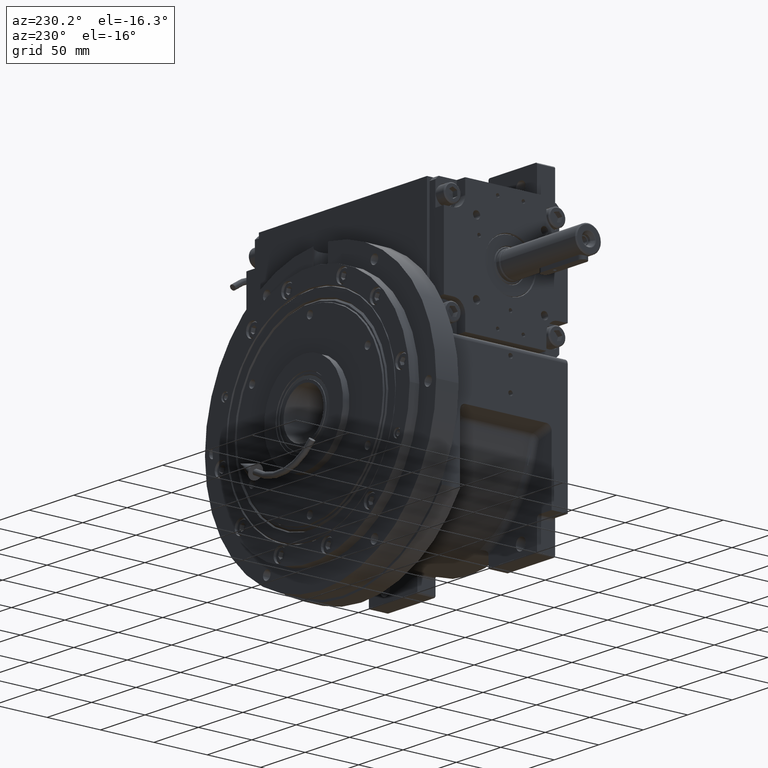
[diagram: clean part render]
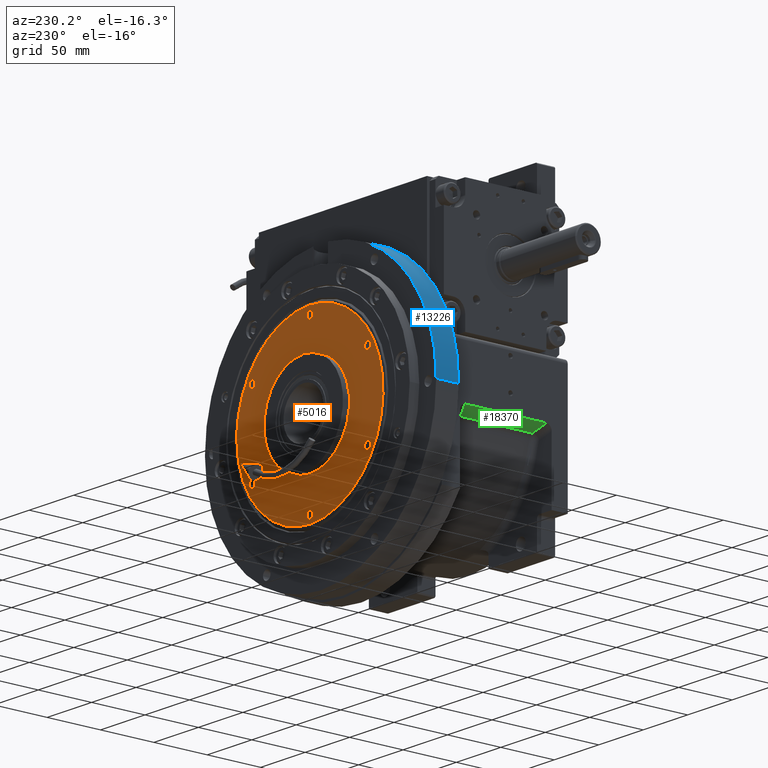
[diagram: same view with three faces highlighted in distinct colors, each labeled with its STEP entity id]
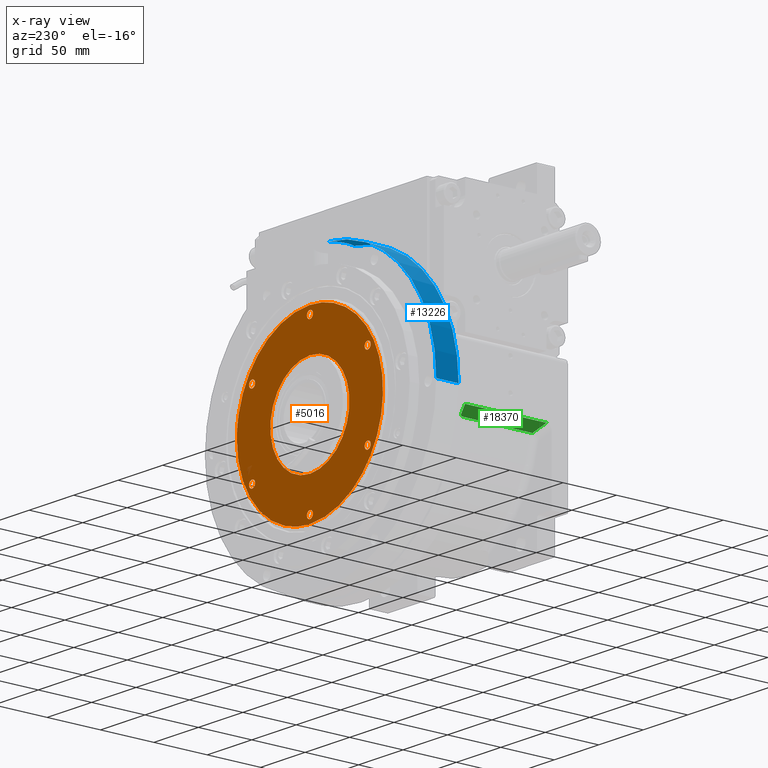
[diagram: x-ray of the same camera — body ghosted, the three highlighted faces saturated]
A machine part, auxiliary view with three faces highlighted in distinct colors.
The next image is the same camera in x-ray (body ghosted, the three faces saturated) — at least one of them is partly hidden behind the body in this view.
Their STEP definitions:

[orange] entity #5016 — the highlighted planar face has unit normal (0, -1, -0).
#200 = ORIENTED_EDGE ( 'NONE', *, *, #17359, .F. ) ;
#719 = AXIS2_PLACEMENT_3D ( 'NONE', #52816, #26103, #43325 ) ;
#1864 = DIRECTION ( 'NONE',  ( -3.197042680585404103E-16, -1.000000000000000000, -2.395852276087259418E-17 ) ) ;
#1905 = CARTESIAN_POINT ( 'NONE',  ( 78.32115647600109298, 110.4999999999999716, -25.16263082416817198 ) ) ;
#1909 = EDGE_CURVE ( 'NONE', #51746, #45084, #8435, .T. ) ;
#2084 = CARTESIAN_POINT ( 'NONE',  ( -73.86467355760834153, 110.5000000000000142, 36.43724814399683254 ) ) ;
#2256 = CIRCLE ( 'NONE', #32590, 3.400000000000000355 ) ;
#2263 = CARTESIAN_POINT ( 'NONE',  ( 80.11857142980544211, 110.5000000000000142, -18.33865731567764001 ) ) ;
#2329 = CARTESIAN_POINT ( 'NONE',  ( -71.59999999999998010, 110.5000000000000000, 3.061616997868142046E-15 ) ) ;
#2435 = CARTESIAN_POINT ( 'NONE',  ( -71.33312151958747904, 110.5000000000000142, 41.17344376063476830 ) ) ;
#2448 = VERTEX_POINT ( 'NONE', #44351 ) ;
#2676 = DIRECTION ( 'NONE',  ( -1.000000000000000000, 4.081702296416015997E-15, 0.000000000000000000 ) ) ;
#2820 = CARTESIAN_POINT ( 'NONE',  ( -50.14754556814370545, 110.5000000000000000, -65.33666926840521683 ) ) ;
#2949 = CARTESIAN_POINT ( 'NONE',  ( 41.17286106389226319, 110.4999999999999858, -71.33364164011456410 ) ) ;
#3069 = CARTESIAN_POINT ( 'NONE',  ( -34.10000000000000142, 110.5000000000000000, -64.95190528383290030 ) ) ;
#3288 = CARTESIAN_POINT ( 'NONE',  ( 61.93063791654595462, 110.5000000000000000, -54.29769947772633287 ) ) ;
#3466 = CARTESIAN_POINT ( 'NONE',  ( 10.74154536275718641, 110.5000000000000000, 81.65949047945815664 ) ) ;
#3506 = CARTESIAN_POINT ( 'NONE',  ( -5.396965920549728679, 110.4999999999999858, -82.18606886526323763 ) ) ;
#3513 = DIRECTION ( 'NONE',  ( -1.000000000000000000, 1.836909530733546166E-16, 0.000000000000000000 ) ) ;
#3603 = AXIS2_PLACEMENT_3D ( 'NONE', #13288, #50865, #55460 ) ;
#3642 = AXIS2_PLACEMENT_3D ( 'NONE', #5266, #26713, #28821 ) ;
#3653 = CARTESIAN_POINT ( 'NONE',  ( -82.18603400874098952, 110.5000015448012078, -1.581323299043360018E-07 ) ) ;
#3825 = CARTESIAN_POINT ( 'NONE',  ( 82.18603400874251008, 110.5000015448018047, 1.581323405575299952E-07 ) ) ;
#4661 = CARTESIAN_POINT ( 'NONE',  ( 37.49999999999973710, 110.5000000000000000, 64.95190528383290030 ) ) ;
#5016 = ADVANCED_FACE ( 'NONE', ( #35882, #68557, #24609, #14796, #9853, #14447, #8791, #63296 ), #52033, .F. ) ;
#5266 = CARTESIAN_POINT ( 'NONE',  ( 75.00000000000000000, 110.5000000000000000, -4.884981308350742420E-15 ) ) ;
#5356 = VERTEX_POINT ( 'NONE', #33503 ) ;
#5871 = EDGE_CURVE ( 'NONE', #7550, #44515, #58655, .T. ) ;
#6125 = EDGE_CURVE ( 'NONE', #48406, #59930, #64202, .T. ) ;
#6368 = CIRCLE ( 'NONE', #54669, 44.45000000000000284 ) ;
#6668 = CARTESIAN_POINT ( 'NONE',  ( -26.46591210633614466, 110.5000000000000426, 77.99484015378844504 ) ) ;
#7027 = CARTESIAN_POINT ( 'NONE',  ( -81.41049721478043466, 110.4999999999999858, 11.40046640563004487 ) ) ;
#7550 = VERTEX_POINT ( 'NONE', #64548 ) ;
#8435 = CIRCLE ( 'NONE', #56720, 3.400000000000000355 ) ;
#8534 = CARTESIAN_POINT ( 'NONE',  ( 34.10000000000000142, 110.5000000000000000, -64.95190528383290030 ) ) ;
#8535 = AXIS2_PLACEMENT_3D ( 'NONE', #15962, #15282, #52855 ) ;
#8744 = CARTESIAN_POINT ( 'NONE',  ( 5.396190313849494657, 110.5000000000000000, 82.18606838660620895 ) ) ;
#8749 = VERTEX_POINT ( 'NONE', #18719 ) ;
#8791 = FACE_BOUND ( 'NONE', #22696, .T. ) ;
#9135 = CARTESIAN_POINT ( 'NONE',  ( -76.96293238175633178, 110.5000000000000284, -28.95791760141081284 ) ) ;
#9140 = DIRECTION ( 'NONE',  ( -1.836909530733546166E-16, -1.000000000000000000, -9.259541093800318768E-31 ) ) ;
#9505 = CARTESIAN_POINT ( 'NONE',  ( -82.18603400874098952, 110.5000015448012078, -1.581323299043360018E-07 ) ) ;
#9516 = B_SPLINE_CURVE_WITH_KNOTS ( 'NONE', 3,
 ( #61889, #3506, #62928, #67159, #29571, #41503, #19357, #2820, #24956, #46077, #25653, #56283, #68192, #9135, #14788, #67503, #24269, #14105, #45735, #40815, #57668, #61539, #30244, #13421, #9505 ),
 .UNSPECIFIED., .F., .F.,
 ( 4, 2, 2, 2, 2, 2, 2, 2, 2, 2, 1, 1, 1, 4 ),
 ( 0.4999999719176850821, 0.5624999754279744746, 0.6249999789382639781, 0.6874999824485534816, 0.7499999859588428741, 0.8124999894691323776, 0.8749999929794217701, 0.9062499947345665774, 0.9374999964897112736, 0.9414062467091042219, 0.9453124969284972812, 0.9531249973672833997, 0.9687499982448555258, 1.000000000000000000 ),
 .UNSPECIFIED. ) ;
#9853 = FACE_BOUND ( 'NONE', #17664, .T. ) ;
#10560 = ORIENTED_EDGE ( 'NONE', *, *, #51841, .T. ) ;
#11001 = EDGE_CURVE ( 'NONE', #45084, #51746, #66909, .T. ) ;
#11200 = CARTESIAN_POINT ( 'NONE',  ( -75.00000000000000000, 110.5000000000000000, 7.993605777300641153E-15 ) ) ;
#12211 = EDGE_CURVE ( 'NONE', #20464, #67680, #6368, .T. ) ;
#12862 = AXIS2_PLACEMENT_3D ( 'NONE', #23861, #66398, #45347 ) ;
#13209 = CARTESIAN_POINT ( 'NONE',  ( 80.33387830201940005, 110.4999999999999716, -17.35095847086826737 ) ) ;
#13288 = CARTESIAN_POINT ( 'NONE',  ( 75.00000000000000000, 110.5000000000000000, 5.107025913275650666E-15 ) ) ;
#13382 = CARTESIAN_POINT ( 'NONE',  ( -80.67297687466572143, 110.5000000000000284, 15.69867770626846770 ) ) ;
#13421 = CARTESIAN_POINT ( 'NONE',  ( -82.18412582237159825, 110.5000000000000426, -2.706922455996795041 ) ) ;
#13540 = EDGE_CURVE ( 'NONE', #30163, #48406, #44227, .T. ) ;
#13726 = CARTESIAN_POINT ( 'NONE',  ( 80.11850087870728032, 110.4999999999999574, 18.33894396968164386 ) ) ;
#14066 = CARTESIAN_POINT ( 'NONE',  ( 26.46597584794664115, 110.5000000000000000, 77.99473097346013617 ) ) ;
#14105 = CARTESIAN_POINT ( 'NONE',  ( -80.67302273752034125, 110.5000000000000284, -15.69862675829507204 ) ) ;
#14115 = DIRECTION ( 'NONE',  ( -1.000000000000000000, 0.000000000000000000, 0.000000000000000000 ) ) ;
#14341 = DIRECTION ( 'NONE',  ( 1.000000000000000000, -6.244223985518314942E-16, 2.023907469293703493E-16 ) ) ;
#14447 = FACE_BOUND ( 'NONE', #56510, .T. ) ;
#14788 = CARTESIAN_POINT ( 'NONE',  ( -77.86803878220746356, 110.5000000000000284, -26.42874468702228441 ) ) ;
#14796 = FACE_BOUND ( 'NONE', #40882, .T. ) ;
#15282 = DIRECTION ( 'NONE',  ( 4.179663151530035154E-15, 1.000000000000000000, 2.089831575764989967E-15 ) ) ;
#15423 = EDGE_CURVE ( 'NONE', #8749, #2448, #65042, .T. ) ;
#15431 = AXIS2_PLACEMENT_3D ( 'NONE', #11200, #22429, #53717 ) ;
#15619 = DIRECTION ( 'NONE',  ( -1.000000000000000000, 0.000000000000000000, 0.000000000000000000 ) ) ;
#15962 = CARTESIAN_POINT ( 'NONE',  ( 37.50000000000000000, 110.5000000000000000, -64.95190528383290030 ) ) ;
#16656 = CIRCLE ( 'NONE', #55955, 44.45000000000000284 ) ;
#16885 = ORIENTED_EDGE ( 'NONE', *, *, #26288, .F. ) ;
#17359 = EDGE_CURVE ( 'NONE', #5356, #68852, #66183, .T. ) ;
#17499 = CARTESIAN_POINT ( 'NONE',  ( 44.44999999999973994, 110.5000000000000000, 5.443555022209685141E-15 ) ) ;
#17664 = EDGE_LOOP ( 'NONE', ( #69457, #61675 ) ) ;
#17760 = CARTESIAN_POINT ( 'NONE',  ( 81.65587465362948194, 110.4999999999999432, -10.75668806138983946 ) ) ;
#17940 = CARTESIAN_POINT ( 'NONE',  ( -77.86821339563776689, 110.5000000000000426, 26.42818210147167335 ) ) ;
#18498 = CARTESIAN_POINT ( 'NONE',  ( -37.50000000000026290, 110.5000000000000000, 64.95190528383290030 ) ) ;
#18719 = CARTESIAN_POINT ( 'NONE',  ( -34.10000000000026432, 110.5000000000000000, 64.95190528383290030 ) ) ;
#18807 = CARTESIAN_POINT ( 'NONE',  ( -1.048367022895735268E-10, 110.5000000000000142, -82.18603692326404087 ) ) ;
#19357 = CARTESIAN_POINT ( 'NONE',  ( -41.17304319471159602, 110.5000000000000426, -71.33342587732616380 ) ) ;
#19495 = CARTESIAN_POINT ( 'NONE',  ( 50.14771722367689222, 110.4999999999999716, -65.33645767331709919 ) ) ;
#19665 = CARTESIAN_POINT ( 'NONE',  ( 82.18222187922351907, 110.4999999999999858, 5.413844607824314537 ) ) ;
#20360 = CARTESIAN_POINT ( 'NONE',  ( 81.65593245021590008, 110.4999999999999716, 10.75709170780790025 ) ) ;
#20464 = VERTEX_POINT ( 'NONE', #17499 ) ;
#22429 = DIRECTION ( 'NONE',  ( 1.873544649899903038E-30, 1.000000000000000000, 1.588892204136985810E-33 ) ) ;
#22498 = CARTESIAN_POINT ( 'NONE',  ( -61.92976105365575279, 110.5000000000000142, 54.29857669836266609 ) ) ;
#22552 = CARTESIAN_POINT ( 'NONE',  ( -44.45000000000026574, 110.5000000000000000, -7.258073362946378332E-15 ) ) ;
#22696 = EDGE_LOOP ( 'NONE', ( #61715, #35377 ) ) ;
#23359 = CARTESIAN_POINT ( 'NONE',  ( 26.46527515611211356, 110.5000000000000284, -77.99510436064866781 ) ) ;
#23711 = CARTESIAN_POINT ( 'NONE',  ( 65.33763228115991240, 110.4999999999999858, -50.14630245138530995 ) ) ;
#23861 = CARTESIAN_POINT ( 'NONE',  ( -37.50000000000000000, 110.5000000000000000, -64.95190528383290030 ) ) ;
#23893 = CARTESIAN_POINT ( 'NONE',  ( -65.33761603904908100, 110.5000000000000426, 50.14632643991264871 ) ) ;
#24269 = CARTESIAN_POINT ( 'NONE',  ( -80.08026981023135704, 110.5000000000000142, -18.67866566709026444 ) ) ;
#24609 = FACE_BOUND ( 'NONE', #45212, .T. ) ;
#24738 = CARTESIAN_POINT ( 'NONE',  ( 54.29822300750021924, 110.4999999999999432, -61.93031885547897986 ) ) ;
#24912 = CARTESIAN_POINT ( 'NONE',  ( 61.93011393209871329, 110.4999999999999858, 54.29833759267260263 ) ) ;
#24956 = CARTESIAN_POINT ( 'NONE',  ( -54.29850716401767841, 110.5000000000000000, -61.92993699073153380 ) ) ;
#25613 = CARTESIAN_POINT ( 'NONE',  ( 80.47346500646517597, 110.4999999999999716, 16.69135747300155614 ) ) ;
#25653 = CARTESIAN_POINT ( 'NONE',  ( -65.33708734634375048, 110.5000000000000142, -50.14696052069778887 ) ) ;
#26103 = DIRECTION ( 'NONE',  ( 4.179663151530024898E-15, 1.000000000000000000, 2.089831575764995094E-15 ) ) ;
#26288 = EDGE_CURVE ( 'NONE', #46347, #59161, #2256, .T. ) ;
#26700 = CARTESIAN_POINT ( 'NONE',  ( -40.89999999999999858, 110.5000000000000000, -64.95190528383290030 ) ) ;
#26713 = DIRECTION ( 'NONE',  ( 1.873544649899903038E-30, 1.000000000000000000, 1.588892204136985810E-33 ) ) ;
#27186 = DIRECTION ( 'NONE',  ( 1.873544649899903038E-30, 1.000000000000000000, -2.089831575764995094E-15 ) ) ;
#28324 = ORIENTED_EDGE ( 'NONE', *, *, #1909, .F. ) ;
#28553 = ORIENTED_EDGE ( 'NONE', *, *, #34426, .T. ) ;
#28665 = EDGE_CURVE ( 'NONE', #44515, #7550, #36213, .T. ) ;
#28821 = DIRECTION ( 'NONE',  ( 1.000000000000000000, 0.000000000000000000, 1.436759208338440266E-15 ) ) ;
#28826 = CARTESIAN_POINT ( 'NONE',  ( -81.03738559922308582, 110.5000000000000284, 13.71894467123656725 ) ) ;
#29182 = CARTESIAN_POINT ( 'NONE',  ( -80.85911346599473859, 110.4999999999999858, 14.71011054370710980 ) ) ;
#29412 = DIRECTION ( 'NONE',  ( 4.179663151530035154E-15, 1.000000000000000000, 2.089831575764980106E-15 ) ) ;
#29535 = CARTESIAN_POINT ( 'NONE',  ( -21.32594694526337165, 110.5000000000000000, 79.55394827524149548 ) ) ;
#29571 = CARTESIAN_POINT ( 'NONE',  ( -26.46516568415016835, 110.5000000000000284, -77.99506614383170700 ) ) ;
#29806 = CARTESIAN_POINT ( 'NONE',  ( 1.776356839400212599E-14, 110.5000000000000000, -3.552713678800504085E-15 ) ) ;
#30027 = CARTESIAN_POINT ( 'NONE',  ( 21.32671897775462355, 110.5000000000000142, -79.55379426815670740 ) ) ;
#30163 = VERTEX_POINT ( 'NONE', #3653 ) ;
#30209 = CARTESIAN_POINT ( 'NONE',  ( 65.33793898011035139, 110.4999999999999716, 50.14568632257584824 ) ) ;
#30244 = CARTESIAN_POINT ( 'NONE',  ( -81.98533930688320481, 110.5000000000000000, -6.740832071539393233 ) ) ;
#31333 = CARTESIAN_POINT ( 'NONE',  ( 40.89999999999973568, 110.5000000000000000, 64.95190528383290030 ) ) ;
#31990 = CARTESIAN_POINT ( 'NONE',  ( -1.048367022895735268E-10, 110.5000000000000142, -82.18603692326404087 ) ) ;
#32590 = AXIS2_PLACEMENT_3D ( 'NONE', #4661, #68994, #46864 ) ;
#32622 = EDGE_LOOP ( 'NONE', ( #66284, #64401, #28553 ) ) ;
#33412 = CARTESIAN_POINT ( 'NONE',  ( -82.18410185386885303, 110.4999999999999858, 2.706720040397336824 ) ) ;
#33503 = CARTESIAN_POINT ( 'NONE',  ( -78.39999999999997726, 110.5000000000000000, 2.697109197274817195E-15 ) ) ;
#33967 = DIRECTION ( 'NONE',  ( 1.873544649899903038E-30, 1.000000000000000000, -2.089831575764999827E-15 ) ) ;
#34426 = EDGE_CURVE ( 'NONE', #59930, #30163, #9516, .T. ) ;
#34458 = CIRCLE ( 'NONE', #719, 3.400000000000000355 ) ;
#34644 = CARTESIAN_POINT ( 'NONE',  ( 69.83423930135026581, 110.4999999999999858, -43.41667302301342346 ) ) ;
#34817 = CARTESIAN_POINT ( 'NONE',  ( -41.17372798125234112, 110.5000000000000142, 71.33306199257258129 ) ) ;
#35377 = ORIENTED_EDGE ( 'NONE', *, *, #5871, .F. ) ;
#35408 = EDGE_CURVE ( 'NONE', #2448, #8749, #34458, .T. ) ;
#35494 = CARTESIAN_POINT ( 'NONE',  ( 21.32597268393185175, 110.4999999999999858, 79.55402177641883554 ) ) ;
#35756 = CARTESIAN_POINT ( 'NONE',  ( 82.18603400874251008, 110.5000015448018047, 1.581323405575299952E-07 ) ) ;
#35842 = CARTESIAN_POINT ( 'NONE',  ( 80.54161329299185468, 110.4999999999999716, 16.35928189945978062 ) ) ;
#35882 = FACE_OUTER_BOUND ( 'NONE', #32622, .T. ) ;
#36187 = ORIENTED_EDGE ( 'NONE', *, *, #65335, .F. ) ;
#36192 = CARTESIAN_POINT ( 'NONE',  ( 73.74790136345738745, 110.5000000000000000, 36.37523474268279244 ) ) ;
#36213 = CIRCLE ( 'NONE', #3603, 3.400000000000000355 ) ;
#36543 = CARTESIAN_POINT ( 'NONE',  ( 50.14712887847355915, 110.4999999999999716, 65.33694734459872677 ) ) ;
#37213 = CARTESIAN_POINT ( 'NONE',  ( 80.54158547785669953, 110.4999999999999858, -16.35931090249731312 ) ) ;
#38161 = AXIS2_PLACEMENT_3D ( 'NONE', #45338, #66390, #55153 ) ;
#39174 = EDGE_CURVE ( 'NONE', #68852, #5356, #40117, .T. ) ;
#39248 = AXIS2_PLACEMENT_3D ( 'NONE', #66671, #29412, #2676 ) ;
#39517 = ORIENTED_EDGE ( 'NONE', *, *, #11001, .F. ) ;
#39918 = CARTESIAN_POINT ( 'NONE',  ( 76.96232867576274828, 110.5000000000000142, -28.95928036596271227 ) ) ;
#40083 = CARTESIAN_POINT ( 'NONE',  ( -50.14684274527402152, 110.5000000000000142, 65.33704237330343290 ) ) ;
#40117 = CIRCLE ( 'NONE', #15431, 3.400000000000000355 ) ;
#40815 = CARTESIAN_POINT ( 'NONE',  ( -80.85914935550086113, 110.5000000000000142, -14.71020086056657838 ) ) ;
#40827 = CARTESIAN_POINT ( 'NONE',  ( 37.49999999999973710, 110.5000000000000000, 64.95190528383290030 ) ) ;
#40882 = EDGE_LOOP ( 'NONE', ( #200, #57172 ) ) ;
#41466 = CARTESIAN_POINT ( 'NONE',  ( 41.17346744512528289, 110.4999999999999858, 71.33314274904846286 ) ) ;
#41503 = CARTESIAN_POINT ( 'NONE',  ( -36.43753282681043260, 110.4999999999999858, -73.86470531561997177 ) ) ;
#41818 = CARTESIAN_POINT ( 'NONE',  ( -5.396175763947936410, 110.5000000000000000, 82.18599094346397749 ) ) ;
#42491 = CARTESIAN_POINT ( 'NONE',  ( 80.47346700800821395, 110.4999999999999858, -16.69126919466643955 ) ) ;
#42556 = CIRCLE ( 'NONE', #67226, 3.400000000000000355 ) ;
#42647 = VERTEX_POINT ( 'NONE', #3069 ) ;
#43325 = DIRECTION ( 'NONE',  ( -1.000000000000000000, 4.081702296416015997E-15, 0.000000000000000000 ) ) ;
#44227 = B_SPLINE_CURVE_WITH_KNOTS ( 'NONE', 3,
 ( #61160, #33412, #55556, #7027, #28826, #29182, #49575, #13382, #50261, #44665, #17940, #45370, #2084, #2435, #23893, #22498, #66791, #40083, #34817, #56252, #6668, #29535, #45704, #41818, #8744, #3466, #35494, #14066, #52332, #41466, #36543, #67121, #24912, #30209, #56921, #51632, #36192, #50954, #46391, #57968, #57630, #13726, #67820, #25613, #35842, #20360, #19665, #3825 ),
 .UNSPECIFIED., .F., .F.,
 ( 4, 1, 1, 1, 2, 2, 2, 2, 2, 2, 2, 2, 2, 2, 2, 2, 2, 2, 2, 2, 2, 1, 1, 1, 2, 2, 4 ),
 ( 0.000000000000000000, 0.03124999999999995837, 0.04687499999999995143, 0.05468749999999994449, 0.05859374999999993755, 0.06249999999999991673, 0.09374999999999993061, 0.1249999999999999445, 0.1874999999999999722, 0.2500000000000000000, 0.3125000000000000000, 0.3750000000000000555, 0.4375000000000000555, 0.5000000000000001110, 0.5625000000000001110, 0.6250000000000001110, 0.6875000000000002220, 0.7500000000000002220, 0.8125000000000001110, 0.8437500000000001110, 0.8750000000000000000, 0.9062500000000000000, 0.9218750000000000000, 0.9296875000000000000, 0.9335937500000000000, 0.9375000000000000000, 1.000000000000000000 ),
 .UNSPECIFIED. ) ;
#44267 = CIRCLE ( 'NONE', #12862, 3.400000000000000355 ) ;
#44351 = CARTESIAN_POINT ( 'NONE',  ( -40.90000000000026148, 110.5000000000000000, 64.95190528383290030 ) ) ;
#44515 = VERTEX_POINT ( 'NONE', #54992 ) ;
#44665 = CARTESIAN_POINT ( 'NONE',  ( -79.42723460417914794, 110.5000000000000142, 21.28768615169941825 ) ) ;
#44798 = DIRECTION ( 'NONE',  ( 1.000000000000000000, -3.122111992759157471E-16, 2.823168139440055505E-16 ) ) ;
#44845 = CARTESIAN_POINT ( 'NONE',  ( 5.396965314102869726, 110.4999999999999858, -82.18599046470633596 ) ) ;
#44861 = DIRECTION ( 'NONE',  ( 1.000000000000000000, 0.000000000000000000, 0.000000000000000000 ) ) ;
#45084 = VERTEX_POINT ( 'NONE', #46013 ) ;
#45212 = EDGE_LOOP ( 'NONE', ( #36187, #66033 ) ) ;
#45338 = CARTESIAN_POINT ( 'NONE',  ( -75.00000000000000000, 110.5000000000000000, 1.043609643147581515E-14 ) ) ;
#45347 = DIRECTION ( 'NONE',  ( 1.000000000000000000, 0.000000000000000000, 0.000000000000000000 ) ) ;
#45370 = CARTESIAN_POINT ( 'NONE',  ( -76.96276536764067089, 110.5000000000000142, 28.95822631422415583 ) ) ;
#45704 = CARTESIAN_POINT ( 'NONE',  ( -10.74154236511540184, 110.5000000000000000, 81.65956691445188653 ) ) ;
#45735 = CARTESIAN_POINT ( 'NONE',  ( -80.73621674438206242, 110.5000000000000000, -15.37038518178290758 ) ) ;
#46013 = CARTESIAN_POINT ( 'NONE',  ( 40.89999999999999858, 110.5000000000000000, -64.95190528383290030 ) ) ;
#46019 = CIRCLE ( 'NONE', #39248, 3.400000000000000355 ) ;
#46077 = CARTESIAN_POINT ( 'NONE',  ( -61.93037135062296272, 110.5000000000000142, -54.29808050887305626 ) ) ;
#46209 = CARTESIAN_POINT ( 'NONE',  ( 71.21656534630055546, 110.4999999999999858, -41.11101387479465075 ) ) ;
#46347 = VERTEX_POINT ( 'NONE', #31333 ) ;
#46391 = CARTESIAN_POINT ( 'NONE',  ( 76.96221393906922970, 110.4999999999999716, 28.95965176232081362 ) ) ;
#46864 = DIRECTION ( 'NONE',  ( 1.000000000000000000, 0.000000000000000000, 0.000000000000000000 ) ) ;
#46987 = ORIENTED_EDGE ( 'NONE', *, *, #52473, .F. ) ;
#48406 = VERTEX_POINT ( 'NONE', #35756 ) ;
#49575 = CARTESIAN_POINT ( 'NONE',  ( -80.73618378714648713, 110.5000000000000142, 15.37033942092474881 ) ) ;
#50261 = CARTESIAN_POINT ( 'NONE',  ( -80.08037051196102141, 110.5000000000000142, 18.67829002333699506 ) ) ;
#50865 = DIRECTION ( 'NONE',  ( 1.873544649899903038E-30, 1.000000000000000000, 1.588892204136985810E-33 ) ) ;
#50954 = CARTESIAN_POINT ( 'NONE',  ( 74.89794069821219580, 110.5000000000000142, 33.94279222128608353 ) ) ;
#51082 = EDGE_LOOP ( 'NONE', ( #28324, #39517 ) ) ;
#51452 = CARTESIAN_POINT ( 'NONE',  ( 74.89780891093313642, 110.5000000000000284, -33.94318345663835856 ) ) ;
#51632 = CARTESIAN_POINT ( 'NONE',  ( 71.21633143618713291, 110.5000000000000000, 41.11144999242241482 ) ) ;
#51673 = CARTESIAN_POINT ( 'NONE',  ( 2.030702568688749067E-14, 110.5000000000000000, 0.000000000000000000 ) ) ;
#51746 = VERTEX_POINT ( 'NONE', #8534 ) ;
#51841 = EDGE_CURVE ( 'NONE', #20464, #67680, #16656, .T. ) ;
#52033 = PLANE ( 'NONE',  #65440 ) ;
#52332 = CARTESIAN_POINT ( 'NONE',  ( 36.43673274471090195, 110.5000000000000142, 73.86503631034787531 ) ) ;
#52473 = EDGE_CURVE ( 'NONE', #59161, #46347, #42556, .T. ) ;
#52816 = CARTESIAN_POINT ( 'NONE',  ( -37.50000000000026290, 110.5000000000000000, 64.95190528383290030 ) ) ;
#52855 = DIRECTION ( 'NONE',  ( 1.000000000000000000, -4.081702296416015997E-15, 0.000000000000000000 ) ) ;
#53717 = DIRECTION ( 'NONE',  ( 1.000000000000000000, 0.000000000000000000, -2.351060522735629490E-15 ) ) ;
#53811 = VERTEX_POINT ( 'NONE', #26700 ) ;
#54669 = AXIS2_PLACEMENT_3D ( 'NONE', #29806, #55838, #14341 ) ;
#54992 = CARTESIAN_POINT ( 'NONE',  ( 71.60000000000000853, 110.5000000000000000, -3.645078005937192810E-16 ) ) ;
#55153 = DIRECTION ( 'NONE',  ( -1.000000000000000000, 0.000000000000000000, -3.069440126904851792E-15 ) ) ;
#55460 = DIRECTION ( 'NONE',  ( -1.000000000000000000, 0.000000000000000000, -1.502066445081090976E-15 ) ) ;
#55556 = CARTESIAN_POINT ( 'NONE',  ( -81.98529366466023305, 110.4999999999999716, 6.740478288382624861 ) ) ;
#55838 = DIRECTION ( 'NONE',  ( 6.394085361170760874E-16, 1.000000000000000000, -2.395852276087255720E-17 ) ) ;
#55955 = AXIS2_PLACEMENT_3D ( 'NONE', #60942, #1864, #44798 ) ;
#56073 = CARTESIAN_POINT ( 'NONE',  ( 36.43741795798403871, 110.5000000000000142, -73.86467248177763167 ) ) ;
#56252 = CARTESIAN_POINT ( 'NONE',  ( -36.43677092628834657, 110.5000000000000000, 73.86494086435298811 ) ) ;
#56283 = CARTESIAN_POINT ( 'NONE',  ( -71.33364469616624604, 110.5000000000000142, -41.17277949763079903 ) ) ;
#56510 = EDGE_LOOP ( 'NONE', ( #46987, #16885 ) ) ;
#56720 = AXIS2_PLACEMENT_3D ( 'NONE', #62720, #27186, #15619 ) ;
#56921 = CARTESIAN_POINT ( 'NONE',  ( 69.83408181518969116, 110.4999999999999858, 43.41695845024568001 ) ) ;
#57172 = ORIENTED_EDGE ( 'NONE', *, *, #39174, .F. ) ;
#57630 = CARTESIAN_POINT ( 'NONE',  ( 79.57457908632085264, 110.4999999999999858, 20.63093614355465988 ) ) ;
#57668 = CARTESIAN_POINT ( 'NONE',  ( -81.03742544091511490, 110.5000000000000284, -13.71909706410294660 ) ) ;
#57968 = CARTESIAN_POINT ( 'NONE',  ( 78.32095192439939524, 110.4999999999999858, 25.16328900372727162 ) ) ;
#58655 = CIRCLE ( 'NONE', #3642, 3.400000000000000355 ) ;
#59161 = VERTEX_POINT ( 'NONE', #67344 ) ;
#59464 = AXIS2_PLACEMENT_3D ( 'NONE', #18498, #33967, #44861 ) ;
#59930 = VERTEX_POINT ( 'NONE', #31990 ) ;
#59973 = EDGE_CURVE ( 'NONE', #42647, #53811, #44267, .T. ) ;
#60267 = CARTESIAN_POINT ( 'NONE',  ( 82.18603400874251008, 110.5000015448018047, 1.581323405575299952E-07 ) ) ;
#60942 = CARTESIAN_POINT ( 'NONE',  ( 2.842170943040403268E-14, 110.5000000000000000, -7.105427357601008170E-15 ) ) ;
#61160 = CARTESIAN_POINT ( 'NONE',  ( -82.18603400874098952, 110.5000015448012078, -1.581323299043360018E-07 ) ) ;
#61332 = CARTESIAN_POINT ( 'NONE',  ( 73.74813151264139321, 110.5000000000000000, -36.37479690083411299 ) ) ;
#61539 = CARTESIAN_POINT ( 'NONE',  ( -81.41054315470101699, 110.5000000000000142, -11.40073033654709000 ) ) ;
#61675 = ORIENTED_EDGE ( 'NONE', *, *, #15423, .F. ) ;
#61677 = CARTESIAN_POINT ( 'NONE',  ( 10.74078281828397508, 110.4999999999999716, -81.65971843768956262 ) ) ;
#61715 = ORIENTED_EDGE ( 'NONE', *, *, #28665, .F. ) ;
#61889 = CARTESIAN_POINT ( 'NONE',  ( -1.048367022895735268E-10, 110.5000000000000142, -82.18603692326404087 ) ) ;
#62720 = CARTESIAN_POINT ( 'NONE',  ( 37.50000000000000000, 110.5000000000000000, -64.95190528383290030 ) ) ;
#62928 = CARTESIAN_POINT ( 'NONE',  ( -10.74076764840350862, 110.4999999999999858, -81.65964476131456706 ) ) ;
#63296 = FACE_BOUND ( 'NONE', #65687, .T. ) ;
#63918 = CARTESIAN_POINT ( 'NONE',  ( 82.18217394222040184, 110.4999999999999716, -5.413439777049708468 ) ) ;
#64202 = B_SPLINE_CURVE_WITH_KNOTS ( 'NONE', 3,
 ( #60267, #63918, #17760, #37213, #42491, #13209, #2263, #67642, #1905, #39918, #51452, #61332, #46209, #34644, #23711, #3288, #24738, #19495, #2949, #56073, #23359, #30027, #61677, #44845, #18807 ),
 .UNSPECIFIED., .F., .F.,
 ( 4, 2, 2, 1, 1, 1, 2, 2, 2, 2, 2, 2, 2, 4 ),
 ( 0.000000000000000000, 0.06249999648971088506, 0.06640624627031782579, 0.07031249605092476651, 0.07812499561213863408, 0.09374999473456628596, 0.1249999929794215758, 0.1562499912242768518, 0.1874999894691321833, 0.2499999859588427631, 0.3124999824485532596, 0.3749999789382638671, 0.4374999754279744746, 0.4999999719176850821 ),
 .UNSPECIFIED. ) ;
#64401 = ORIENTED_EDGE ( 'NONE', *, *, #6125, .T. ) ;
#64548 = CARTESIAN_POINT ( 'NONE',  ( 78.40000000000000568, 110.5000000000000000, -3.944304526105059027E-28 ) ) ;
#65042 = CIRCLE ( 'NONE', #59464, 3.400000000000000355 ) ;
#65335 = EDGE_CURVE ( 'NONE', #53811, #42647, #46019, .T. ) ;
#65440 = AXIS2_PLACEMENT_3D ( 'NONE', #51673, #9140, #3513 ) ;
#65687 = EDGE_LOOP ( 'NONE', ( #68492, #10560 ) ) ;
#66033 = ORIENTED_EDGE ( 'NONE', *, *, #59973, .F. ) ;
#66183 = CIRCLE ( 'NONE', #38161, 3.400000000000000355 ) ;
#66284 = ORIENTED_EDGE ( 'NONE', *, *, #13540, .T. ) ;
#66390 = DIRECTION ( 'NONE',  ( 1.873544649899903038E-30, 1.000000000000000000, 1.588892204136985810E-33 ) ) ;
#66398 = DIRECTION ( 'NONE',  ( 1.873544649899903038E-30, 1.000000000000000000, -2.089831575764980106E-15 ) ) ;
#66671 = CARTESIAN_POINT ( 'NONE',  ( -37.50000000000000000, 110.5000000000000000, -64.95190528383290030 ) ) ;
#66791 = CARTESIAN_POINT ( 'NONE',  ( -54.29909472632881773, 110.5000000000000000, 61.92944677904171868 ) ) ;
#66909 = CIRCLE ( 'NONE', #8535, 3.400000000000000355 ) ;
#67121 = CARTESIAN_POINT ( 'NONE',  ( 54.29876972623154785, 110.4999999999999858, 61.92967476324737675 ) ) ;
#67159 = CARTESIAN_POINT ( 'NONE',  ( -21.32673791258707396, 110.5000000000000000, -79.55386997823406148 ) ) ;
#67226 = AXIS2_PLACEMENT_3D ( 'NONE', #40827, #67864, #14115 ) ;
#67344 = CARTESIAN_POINT ( 'NONE',  ( 34.09999999999973141, 110.5000000000000000, 64.95190528383290030 ) ) ;
#67503 = CARTESIAN_POINT ( 'NONE',  ( -79.42706700825716837, 110.5000000000000000, -21.28825086087052298 ) ) ;
#67642 = CARTESIAN_POINT ( 'NONE',  ( 79.57472203535758126, 110.4999999999999858, -20.63044246711258722 ) ) ;
#67680 = VERTEX_POINT ( 'NONE', #22552 ) ;
#67820 = CARTESIAN_POINT ( 'NONE',  ( 80.33384769217845189, 110.4999999999999858, 17.35112966435321979 ) ) ;
#67864 = DIRECTION ( 'NONE',  ( 1.873544649899903038E-30, 1.000000000000000000, -2.089831575764989967E-15 ) ) ;
#68192 = CARTESIAN_POINT ( 'NONE',  ( -73.86436510405066258, 110.5000000000000000, -36.43783581387070569 ) ) ;
#68492 = ORIENTED_EDGE ( 'NONE', *, *, #12211, .F. ) ;
#68557 = FACE_BOUND ( 'NONE', #51082, .T. ) ;
#68852 = VERTEX_POINT ( 'NONE', #2329 ) ;
#68994 = DIRECTION ( 'NONE',  ( 1.873544649899903038E-30, 1.000000000000000000, 2.089831575764995094E-15 ) ) ;
#69457 = ORIENTED_EDGE ( 'NONE', *, *, #35408, .F. ) ;

[blue] entity #13226 — the highlighted cylindrical surface (partial cylindrical patch) has radius 130 mm, axis along (0, 1, 0).
#425 = CARTESIAN_POINT ( 'NONE',  ( -13.80235316895415387, -129.2665418340730810, 14.50945535420595256 ) ) ;
#1172 = EDGE_CURVE ( 'NONE', #9301, #53090, #14050, .T. ) ;
#3198 = DIRECTION ( 'NONE',  ( 0.000000000000000000, 0.000000000000000000, -1.000000000000000000 ) ) ;
#4823 = CARTESIAN_POINT ( 'NONE',  ( -15.00143218934681499, -129.1315215487281591, 8.499986352081439378 ) ) ;
#4999 = CARTESIAN_POINT ( 'NONE',  ( -11.88452861216700462, -129.4561163722632955, 17.67233080461916117 ) ) ;
#5503 = B_SPLINE_CURVE_WITH_KNOTS ( 'NONE', 3,
 ( #40393, #42453, #52990, #63887, #41778, #47390, #69154, #62502, #30525, #4823 ),
 .UNSPECIFIED., .F., .F.,
 ( 4, 2, 2, 2, 4 ),
 ( 0.000000000000000000, 0.1897613856618252937, 0.2372017320772815963, 0.2846420784927379266, 0.3795227713236504208 ),
 .UNSPECIFIED. ) ;
#9301 = VERTEX_POINT ( 'NONE', #16035 ) ;
#9556 = CARTESIAN_POINT ( 'NONE',  ( -130.0000000000000000, 1.592040838891559450E-14, 0.000000000000000000 ) ) ;
#10880 = VERTEX_POINT ( 'NONE', #14586 ) ;
#13226 = ADVANCED_FACE ( 'NONE', ( #36963 ), #26718, .T. ) ;
#14050 = CIRCLE ( 'NONE', #19590, 130.0000000000000000 ) ;
#14440 = VECTOR ( 'NONE', #51042, 1000.000000000000000 ) ;
#14586 = CARTESIAN_POINT ( 'NONE',  ( -8.291561975888519953, -129.7353074532911990, 21.00000000000000355 ) ) ;
#15582 = CARTESIAN_POINT ( 'NONE',  ( -14.69513779241925633, -129.1668526120003548, 11.56924557906078910 ) ) ;
#15847 = VERTEX_POINT ( 'NONE', #37683 ) ;
#16035 = CARTESIAN_POINT ( 'NONE',  ( -12.35920709430827813, -129.4111664424673620, 0.000000000000000000 ) ) ;
#16901 = EDGE_LOOP ( 'NONE', ( #24057, #37392, #21760, #23063, #24606 ) ) ;
#16965 = CARTESIAN_POINT ( 'NONE',  ( -12.91856023145844645, -129.3566302989645180, 16.13028264147461499 ) ) ;
#19590 = AXIS2_PLACEMENT_3D ( 'NONE', #23974, #3198, #62611 ) ;
#21086 = AXIS2_PLACEMENT_3D ( 'NONE', #54507, #48544, #21465 ) ;
#21181 = CARTESIAN_POINT ( 'NONE',  ( -10.26699593847754421, -129.5965674309751421, 19.50457521302365294 ) ) ;
#21465 = DIRECTION ( 'NONE',  ( 1.000000000000000000, 0.000000000000000000, 0.000000000000000000 ) ) ;
#21532 = CARTESIAN_POINT ( 'NONE',  ( -12.41898113420018923, -129.4055676129082713, 16.91722749714064022 ) ) ;
#21760 = ORIENTED_EDGE ( 'NONE', *, *, #64943, .T. ) ;
#21764 = EDGE_CURVE ( 'NONE', #15847, #10880, #39768, .T. ) ;
#21889 = CARTESIAN_POINT ( 'NONE',  ( -12.59150776379347114, -129.3888748424342907, 16.65722266484502256 ) ) ;
#22219 = CARTESIAN_POINT ( 'NONE',  ( -15.00270569908994034, -129.1314013775580918, 9.112226185417586777 ) ) ;
#22729 = CARTESIAN_POINT ( 'NONE',  ( -15.00143218934681499, -129.1315215487281591, 8.499986352081439378 ) ) ;
#23063 = ORIENTED_EDGE ( 'NONE', *, *, #66063, .T. ) ;
#23285 = EDGE_CURVE ( 'NONE', #53090, #15847, #25705, .T. ) ;
#23974 = CARTESIAN_POINT ( 'NONE',  ( 2.309263891220324973E-14, 2.248201624865940811E-15, 0.000000000000000000 ) ) ;
#24057 = ORIENTED_EDGE ( 'NONE', *, *, #23285, .F. ) ;
#24606 = ORIENTED_EDGE ( 'NONE', *, *, #21764, .F. ) ;
#25546 = VERTEX_POINT ( 'NONE', #22729 ) ;
#25705 = LINE ( 'NONE', #9556, #14440 ) ;
#26445 = CARTESIAN_POINT ( 'NONE',  ( -11.50077343924198559, -129.4909363012416748, 18.14982380795652261 ) ) ;
#26718 = CYLINDRICAL_SURFACE ( 'NONE', #21086, 130.0000000000000000 ) ;
#30525 = CARTESIAN_POINT ( 'NONE',  ( -15.00305849549420500, -129.1313603886328565, 7.751017832233382698 ) ) ;
#31750 = CARTESIAN_POINT ( 'NONE',  ( -13.07323126914367428, -129.3410689267132057, 15.86317561004781496 ) ) ;
#32787 = CARTESIAN_POINT ( 'NONE',  ( -14.81091454694562515, -129.1535627435243043, 10.95144805384406261 ) ) ;
#36963 = FACE_OUTER_BOUND ( 'NONE', #16901, .T. ) ;
#37378 = CARTESIAN_POINT ( 'NONE',  ( -9.334449332471535854, -129.6686550876343915, 20.30410600980846780 ) ) ;
#37392 = ORIENTED_EDGE ( 'NONE', *, *, #1172, .F. ) ;
#37683 = CARTESIAN_POINT ( 'NONE',  ( -130.0000000000000000, 1.592040838891559450E-14, 21.00000000000000355 ) ) ;
#39768 = CIRCLE ( 'NONE', #52071, 130.0000000000000568 ) ;
#40393 = CARTESIAN_POINT ( 'NONE',  ( -12.35920709430827813, -129.4111664424673620, 0.000000000000000000 ) ) ;
#41778 = CARTESIAN_POINT ( 'NONE',  ( -14.53309206860593683, -129.1851249358394966, 4.769104516386164505 ) ) ;
#42453 = CARTESIAN_POINT ( 'NONE',  ( -13.22535772275536736, -129.3284461078462186, 1.266207750108006236 ) ) ;
#43264 = CARTESIAN_POINT ( 'NONE',  ( -3.375077994860475252E-14, -8.312794896880859596E-15, 21.00000000000000355 ) ) ;
#47390 = CARTESIAN_POINT ( 'NONE',  ( -14.70253640140903961, -129.1659502079718607, 5.506016819442672627 ) ) ;
#48544 = DIRECTION ( 'NONE',  ( 0.000000000000000000, 0.000000000000000000, 1.000000000000000000 ) ) ;
#48612 = CARTESIAN_POINT ( 'NONE',  ( -14.96428873349310784, -129.1358820071440903, 9.724966490998067314 ) ) ;
#48883 = DIRECTION ( 'NONE',  ( 0.000000000000000000, 0.000000000000000000, 1.000000000000000000 ) ) ;
#49294 = CARTESIAN_POINT ( 'NONE',  ( -14.24411979220796454, -129.2176327172837489, 13.36828683366709214 ) ) ;
#51042 = DIRECTION ( 'NONE',  ( 0.000000000000000000, 0.000000000000000000, 1.000000000000000000 ) ) ;
#52071 = AXIS2_PLACEMENT_3D ( 'NONE', #43264, #48883, #60437 ) ;
#52990 = CARTESIAN_POINT ( 'NONE',  ( -13.88004516542396161, -129.2576652649308073, 2.615462242618016298 ) ) ;
#53090 = VERTEX_POINT ( 'NONE', #60234 ) ;
#54507 = CARTESIAN_POINT ( 'NONE',  ( 0.000000000000000000, 0.000000000000000000, 0.000000000000000000 ) ) ;
#58791 = CARTESIAN_POINT ( 'NONE',  ( -8.291561975888519953, -129.7353074532911990, 21.00000000000000355 ) ) ;
#60234 = CARTESIAN_POINT ( 'NONE',  ( -130.0000000000000000, 1.592040838891559450E-14, 0.000000000000000000 ) ) ;
#60437 = DIRECTION ( 'NONE',  ( 0.06378124596837327076, -0.9979639034868555969, 0.000000000000000000 ) ) ;
#62502 = CARTESIAN_POINT ( 'NONE',  ( -14.94599957172524540, -129.1380282583018300, 7.002798283392193568 ) ) ;
#62611 = DIRECTION ( 'NONE',  ( -0.09507082380237159847, -0.9954705110959030101, 0.000000000000000000 ) ) ;
#63887 = CARTESIAN_POINT ( 'NONE',  ( -14.43521854074078803, -129.1961181533795298, 4.405838786258034823 ) ) ;
#64071 = CARTESIAN_POINT ( 'NONE',  ( -15.00143218934681499, -129.1315215487281591, 8.499986352081439378 ) ) ;
#64943 = EDGE_CURVE ( 'NONE', #9301, #25546, #5503, .T. ) ;
#66063 = EDGE_CURVE ( 'NONE', #25546, #10880, #69139, .T. ) ;
#69139 = B_SPLINE_CURVE_WITH_KNOTS ( 'NONE', 3,
 ( #64071, #22219, #48612, #32787, #15582, #49294, #425, #31750, #16965, #21889, #21532, #4999, #26445, #21181, #37378, #58791 ),
 .UNSPECIFIED., .F., .F.,
 ( 4, 2, 2, 2, 2, 2, 2, 4 ),
 ( 0.3795227713236504208, 0.4570824249081946733, 0.5346420784927389258, 0.6897613856618273198, 0.7285412124540990852, 0.7673210392463709617, 0.8448806928309138264, 1.000000000000000000 ),
 .UNSPECIFIED. ) ;
#69154 = CARTESIAN_POINT ( 'NONE',  ( -14.77449224127621896, -129.1577240834727149, 5.881592422037989820 ) ) ;

[green] entity #18370 — the highlighted planar face has unit normal (0.2588, 0, 0.9659).
#512 = CARTESIAN_POINT ( 'NONE',  ( -111.0000000000000000, -33.50000000000000000, -7.000000000000000000 ) ) ;
#542 = EDGE_CURVE ( 'NONE', #5104, #23818, #61104, .T. ) ;
#973 = CARTESIAN_POINT ( 'NONE',  ( -108.1141480369009855, 41.10903083548640069, -7.773261702988109256 ) ) ;
#1791 = DIRECTION ( 'NONE',  ( -0.9659258262890683122, 0.000000000000000000, 0.2588190451025206285 ) ) ;
#3164 = CARTESIAN_POINT ( 'NONE',  ( -110.8454091407269999, 42.37686665448320156, -7.041422495899439582 ) ) ;
#3594 = VECTOR ( 'NONE', #4751, 1000.000000000000114 ) ;
#4751 = DIRECTION ( 'NONE',  ( 0.9659258262890683122, 0.000000000000000000, -0.2588190451025206285 ) ) ;
#4886 = VERTEX_POINT ( 'NONE', #23939 ) ;
#5104 = VERTEX_POINT ( 'NONE', #7892 ) ;
#6607 = CARTESIAN_POINT ( 'NONE',  ( -109.4089144264236069, 41.83012586332569782, -7.426330094528609926 ) ) ;
#7314 = ORIENTED_EDGE ( 'NONE', *, *, #56085, .F. ) ;
#7775 = CARTESIAN_POINT ( 'NONE',  ( -92.21831738220639352, -53.50000000000000000, -12.03253668993542114 ) ) ;
#7791 = ORIENTED_EDGE ( 'NONE', *, *, #14504, .F. ) ;
#7892 = CARTESIAN_POINT ( 'NONE',  ( -111.0000000000000000, -33.50000000000000000, -7.000000000000000000 ) ) ;
#8461 = CARTESIAN_POINT ( 'NONE',  ( -109.7538612896843944, 42.01132021929730342, -7.333901861086180141 ) ) ;
#8973 = ORIENTED_EDGE ( 'NONE', *, *, #542, .T. ) ;
#9112 = CARTESIAN_POINT ( 'NONE',  ( -95.39032907374080139, 31.57072785594114350, -11.18259871880669998 ) ) ;
#9146 = CARTESIAN_POINT ( 'NONE',  ( -110.9999999993382005, 42.40620941626179530, -7.000000000177450055 ) ) ;
#9481 = CARTESIAN_POINT ( 'NONE',  ( -98.03370852217169329, 35.54918147809699747, -10.47430712386654150 ) ) ;
#9965 = B_SPLINE_CURVE_WITH_KNOTS ( 'NONE', 3,
 ( #15797, #37241, #54448, #65328, #973, #6607 ),
 .UNSPECIFIED., .F., .F.,
 ( 4, 1, 1, 4 ),
 ( 2.143847229520050019E-09, 0.3247473358057200721, 0.6578753255351741380, 1.000000000000000000 ),
 .UNSPECIFIED. ) ;
#10586 = B_SPLINE_CURVE_WITH_KNOTS ( 'NONE', 3,
 ( #47447, #9112, #30223, #51298, #24933, #24582, #46050, #9481 ),
 .UNSPECIFIED., .F., .F.,
 ( 4, 1, 1, 1, 1, 4 ),
 ( 0.000000000000000000, 0.1928403228492605037, 0.3885217316720004921, 0.5879144782700349570, 0.7917981560179220279, 0.9999999204798000196 ),
 .UNSPECIFIED. ) ;
#14013 = CARTESIAN_POINT ( 'NONE',  ( -111.0000000000000000, -33.50000000000000000, -7.000000000000000000 ) ) ;
#14116 = CARTESIAN_POINT ( 'NONE',  ( -110.1317583290079938, 42.16983072641099994, -7.232644654577310206 ) ) ;
#14504 = EDGE_CURVE ( 'NONE', #31689, #4886, #10586, .T. ) ;
#15797 = CARTESIAN_POINT ( 'NONE',  ( -98.03370852217169329, 35.54918147809699747, -10.47430712386654150 ) ) ;
#18167 = ORIENTED_EDGE ( 'NONE', *, *, #62264, .F. ) ;
#18370 = ADVANCED_FACE ( 'NONE', ( #28881 ), #55951, .F. ) ;
#19483 = EDGE_CURVE ( 'NONE', #5104, #25709, #47655, .T. ) ;
#23818 = VERTEX_POINT ( 'NONE', #67389 ) ;
#23939 = CARTESIAN_POINT ( 'NONE',  ( -98.03370852217169329, 35.54918147809699747, -10.47430712386654150 ) ) ;
#24582 = CARTESIAN_POINT ( 'NONE',  ( -97.11854332922079891, 34.96455170198394313, -10.71952510470289965 ) ) ;
#24933 = CARTESIAN_POINT ( 'NONE',  ( -96.36734441605560164, 34.17718273974175247, -10.92080824684065909 ) ) ;
#25663 = CARTESIAN_POINT ( 'NONE',  ( -110.5503288113652047, 42.30721305206860450, -7.120489031854190465 ) ) ;
#25709 = VERTEX_POINT ( 'NONE', #61730 ) ;
#26302 = ORIENTED_EDGE ( 'NONE', *, *, #19483, .F. ) ;
#28881 = FACE_OUTER_BOUND ( 'NONE', #46931, .T. ) ;
#30223 = CARTESIAN_POINT ( 'NONE',  ( -95.46549217704298940, 32.25976529876945165, -11.16245882597625894 ) ) ;
#31606 = VERTEX_POINT ( 'NONE', #63436 ) ;
#31689 = VERTEX_POINT ( 'NONE', #32840 ) ;
#32840 = CARTESIAN_POINT ( 'NONE',  ( -95.38887123394979994, 31.21878281274400280, -11.18298934597885896 ) ) ;
#33895 = ORIENTED_EDGE ( 'NONE', *, *, #35746, .F. ) ;
#35746 = EDGE_CURVE ( 'NONE', #31606, #23818, #46968, .T. ) ;
#37241 = CARTESIAN_POINT ( 'NONE',  ( -99.26766393772969366, 36.22403195293070155, -10.14366997321584130 ) ) ;
#39540 = LINE ( 'NONE', #61307, #41757 ) ;
#40227 = DIRECTION ( 'NONE',  ( -2.195785226109599967E-16, 1.000000000000000000, 5.489463065273999302E-17 ) ) ;
#41075 = VECTOR ( 'NONE', #62479, 1000.000000000000000 ) ;
#41757 = VECTOR ( 'NONE', #40227, 1000.000000000000000 ) ;
#41874 = CARTESIAN_POINT ( 'NONE',  ( -109.4089144264236069, 41.83012586332569782, -7.426330094528609926 ) ) ;
#46050 = CARTESIAN_POINT ( 'NONE',  ( -97.70991636436450278, 35.37230206870415117, -10.56106717751062085 ) ) ;
#46931 = EDGE_LOOP ( 'NONE', ( #18167, #7791, #7314, #26302, #8973, #33895 ) ) ;
#46968 = B_SPLINE_CURVE_WITH_KNOTS ( 'NONE', 3,
 ( #41874, #57321, #8461, #14116, #25663, #3164, #9146 ),
 .UNSPECIFIED., .F., .F.,
 ( 4, 1, 1, 1, 4 ),
 ( 0.000000000000000000, 0.2225611911259174902, 0.4631102380455490164, 0.7220849124014390163, 1.000000000000000000 ),
 .UNSPECIFIED. ) ;
#47447 = CARTESIAN_POINT ( 'NONE',  ( -95.38887123394979994, 31.21878281274400280, -11.18298934597885896 ) ) ;
#47655 = LINE ( 'NONE', #512, #3594 ) ;
#51298 = CARTESIAN_POINT ( 'NONE',  ( -95.81012503264268787, 33.26415775477455128, -11.07011473063309914 ) ) ;
#54448 = CARTESIAN_POINT ( 'NONE',  ( -101.7655037341313999, 37.59487724697890343, -9.474375816947668838 ) ) ;
#55951 = PLANE ( 'NONE',  #59563 ) ;
#56085 = EDGE_CURVE ( 'NONE', #25709, #31689, #39540, .T. ) ;
#57321 = CARTESIAN_POINT ( 'NONE',  ( -109.5196939851890079, 41.89175746107850529, -7.396646801219569412 ) ) ;
#59563 = AXIS2_PLACEMENT_3D ( 'NONE', #7775, #67180, #1791 ) ;
#61104 = LINE ( 'NONE', #14013, #41075 ) ;
#61307 = CARTESIAN_POINT ( 'NONE',  ( -95.38887148343249578, -33.50000000000000000, -11.18298927895272143 ) ) ;
#61730 = CARTESIAN_POINT ( 'NONE',  ( -95.38887148343249578, -33.50000000000000000, -11.18298927895272143 ) ) ;
#62264 = EDGE_CURVE ( 'NONE', #4886, #31606, #9965, .T. ) ;
#62479 = DIRECTION ( 'NONE',  ( 0.000000000000000000, 1.000000000000000000, 0.000000000000000000 ) ) ;
#63436 = CARTESIAN_POINT ( 'NONE',  ( -109.4089144264236069, 41.83012586332569782, -7.426330094528609926 ) ) ;
#65328 = CARTESIAN_POINT ( 'NONE',  ( -105.5570020203849992, 39.68902199859925162, -8.458446913042099169 ) ) ;
#67180 = DIRECTION ( 'NONE',  ( 0.2588190451025206285, 0.000000000000000000, 0.9659258262890683122 ) ) ;
#67389 = CARTESIAN_POINT ( 'NONE',  ( -110.9999999993382005, 42.40620941626179530, -7.000000000177450055 ) ) ;